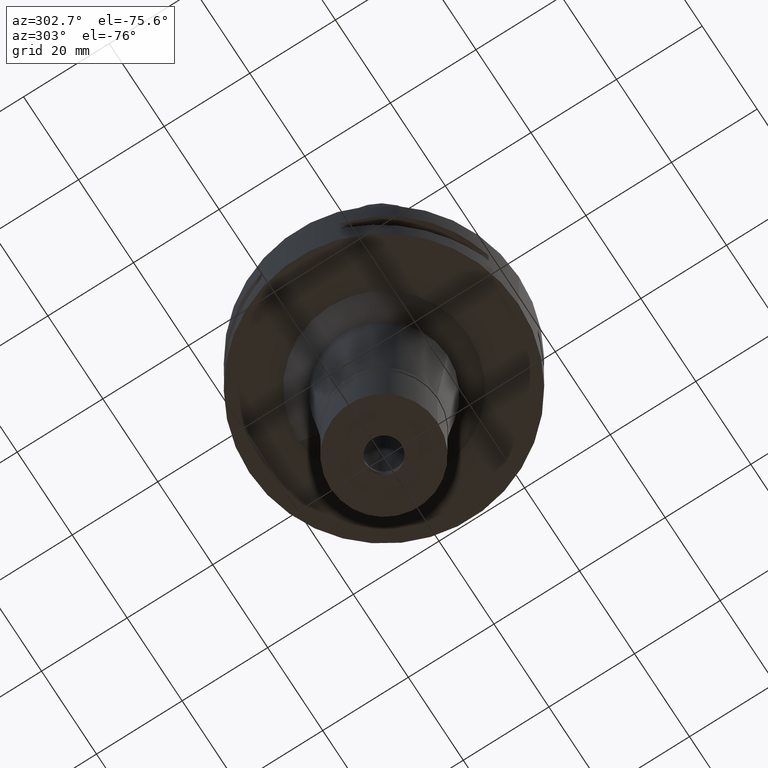
[diagram: clean part render]
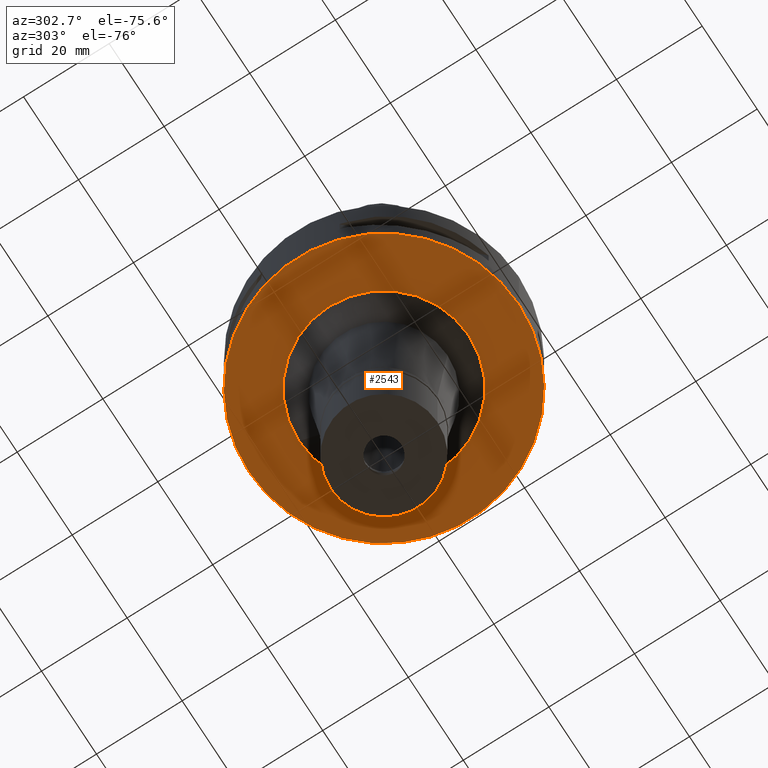
[diagram: same view with one face highlighted and labeled with its STEP entity id]
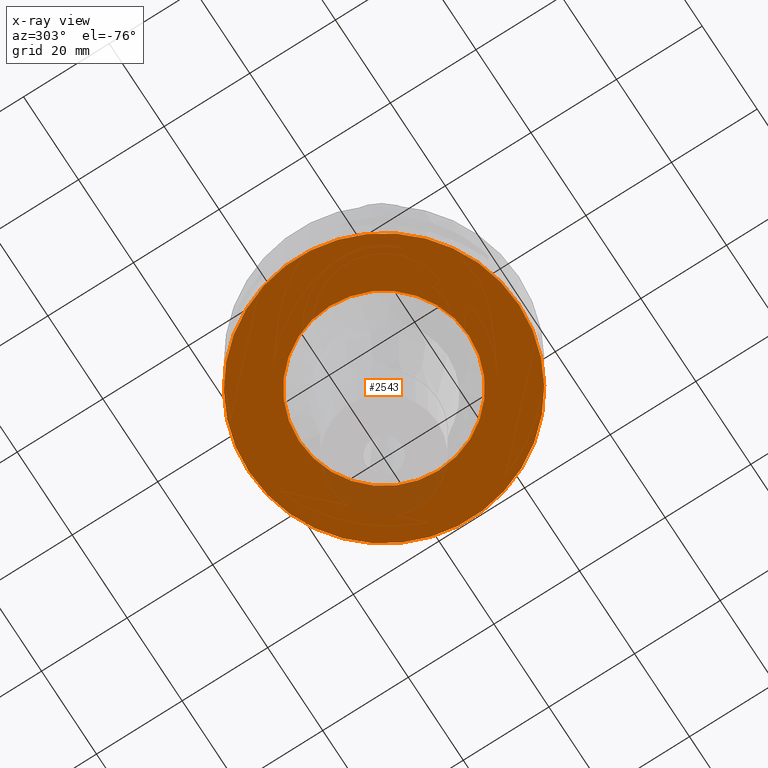
[diagram: x-ray of the same camera — body ghosted, the highlighted face saturated]
A machine part, auxiliary view. The second image highlights one B-rep face of the part: STEP entity #2543.
The next image is the same camera in x-ray: the body ghosted, the highlighted face saturated — about 7% of this face is hidden behind the body in this view.
In plain terms, the highlighted planar face has unit normal (0, 0, -1).
Its self-contained STEP definition (entity closure, byte-faithful):
#112 = EDGE_LOOP ( 'NONE', ( #4757, #1074 ) ) ;
#243 = FACE_OUTER_BOUND ( 'NONE', #4529, .T. ) ;
#459 = ORIENTED_EDGE ( 'NONE', *, *, #1919, .F. ) ;
#535 = DIRECTION ( 'NONE',  ( 0.0000000000000000000, 1.000000000000000000, 0.0000000000000000000 ) ) ;
#718 = CIRCLE ( 'NONE', #4125, 31.50000000000000000 ) ;
#851 = CARTESIAN_POINT ( 'NONE',  ( 0.0000000000000000000, -19.83594731614000395, -22.00000000000000000 ) ) ;
#898 = CARTESIAN_POINT ( 'NONE',  ( 0.0000000000000000000, 0.0000000000000000000, -22.00000000000000000 ) ) ;
#1074 = ORIENTED_EDGE ( 'NONE', *, *, #1094, .F. ) ;
#1094 = EDGE_CURVE ( 'NONE', #3353, #1961, #4001, .T. ) ;
#1105 = DIRECTION ( 'NONE',  ( 0.0000000000000000000, 1.000000000000000000, 0.0000000000000000000 ) ) ;
#1292 = VERTEX_POINT ( 'NONE', #3074 ) ;
#1412 = DIRECTION ( 'NONE',  ( 0.0000000000000000000, 0.0000000000000000000, -1.000000000000000000 ) ) ;
#1859 = CIRCLE ( 'NONE', #2258, 19.83594731614000395 ) ;
#1887 = DIRECTION ( 'NONE',  ( 0.0000000000000000000, 0.0000000000000000000, 1.000000000000000000 ) ) ;
#1919 = EDGE_CURVE ( 'NONE', #1930, #1292, #4400, .T. ) ;
#1930 = VERTEX_POINT ( 'NONE', #4176 ) ;
#1961 = VERTEX_POINT ( 'NONE', #2344 ) ;
#2082 = AXIS2_PLACEMENT_3D ( 'NONE', #3082, #4231, #4197 ) ;
#2093 = AXIS2_PLACEMENT_3D ( 'NONE', #3600, #1412, #3976 ) ;
#2258 = AXIS2_PLACEMENT_3D ( 'NONE', #898, #2417, #535 ) ;
#2344 = CARTESIAN_POINT ( 'NONE',  ( 0.0000000000000000000, 19.83594731614000395, -22.00000000000000000 ) ) ;
#2411 = EDGE_CURVE ( 'NONE', #1961, #3353, #1859, .T. ) ;
#2417 = DIRECTION ( 'NONE',  ( 0.0000000000000000000, 0.0000000000000000000, -1.000000000000000000 ) ) ;
#2543 = ADVANCED_FACE ( 'NONE', ( #243, #4472 ), #4763, .T. ) ;
#2966 = DIRECTION ( 'NONE',  ( 0.0000000000000000000, 0.0000000000000000000, 1.000000000000000000 ) ) ;
#3047 = AXIS2_PLACEMENT_3D ( 'NONE', #3778, #1887, #1105 ) ;
#3074 = CARTESIAN_POINT ( 'NONE',  ( 0.0000000000000000000, -31.50000000000000000, -22.00000000000000000 ) ) ;
#3082 = CARTESIAN_POINT ( 'NONE',  ( 0.0000000000000000000, 0.0000000000000000000, -22.00000000000000000 ) ) ;
#3132 = EDGE_CURVE ( 'NONE', #1292, #1930, #718, .T. ) ;
#3321 = CARTESIAN_POINT ( 'NONE',  ( 0.0000000000000000000, 1.266774649037999887E-14, -22.00000000000000000 ) ) ;
#3345 = DIRECTION ( 'NONE',  ( 0.0000000000000000000, -1.000000000000000000, 0.0000000000000000000 ) ) ;
#3353 = VERTEX_POINT ( 'NONE', #851 ) ;
#3600 = CARTESIAN_POINT ( 'NONE',  ( 0.0000000000000000000, 0.0000000000000000000, -22.00000000000000000 ) ) ;
#3778 = CARTESIAN_POINT ( 'NONE',  ( 0.0000000000000000000, 1.266774649037999887E-14, -22.00000000000000000 ) ) ;
#3976 = DIRECTION ( 'NONE',  ( 0.0000000000000000000, -1.000000000000000000, 0.0000000000000000000 ) ) ;
#4001 = CIRCLE ( 'NONE', #2082, 19.83594731614000395 ) ;
#4125 = AXIS2_PLACEMENT_3D ( 'NONE', #3321, #2966, #3345 ) ;
#4176 = CARTESIAN_POINT ( 'NONE',  ( 0.0000000000000000000, 31.50000000000000000, -22.00000000000000000 ) ) ;
#4197 = DIRECTION ( 'NONE',  ( 0.0000000000000000000, -1.000000000000000000, 0.0000000000000000000 ) ) ;
#4231 = DIRECTION ( 'NONE',  ( 0.0000000000000000000, 0.0000000000000000000, -1.000000000000000000 ) ) ;
#4344 = ORIENTED_EDGE ( 'NONE', *, *, #3132, .F. ) ;
#4400 = CIRCLE ( 'NONE', #3047, 31.50000000000000000 ) ;
#4472 = FACE_BOUND ( 'NONE', #112, .T. ) ;
#4529 = EDGE_LOOP ( 'NONE', ( #459, #4344 ) ) ;
#4757 = ORIENTED_EDGE ( 'NONE', *, *, #2411, .F. ) ;
#4763 = PLANE ( 'NONE',  #2093 ) ;